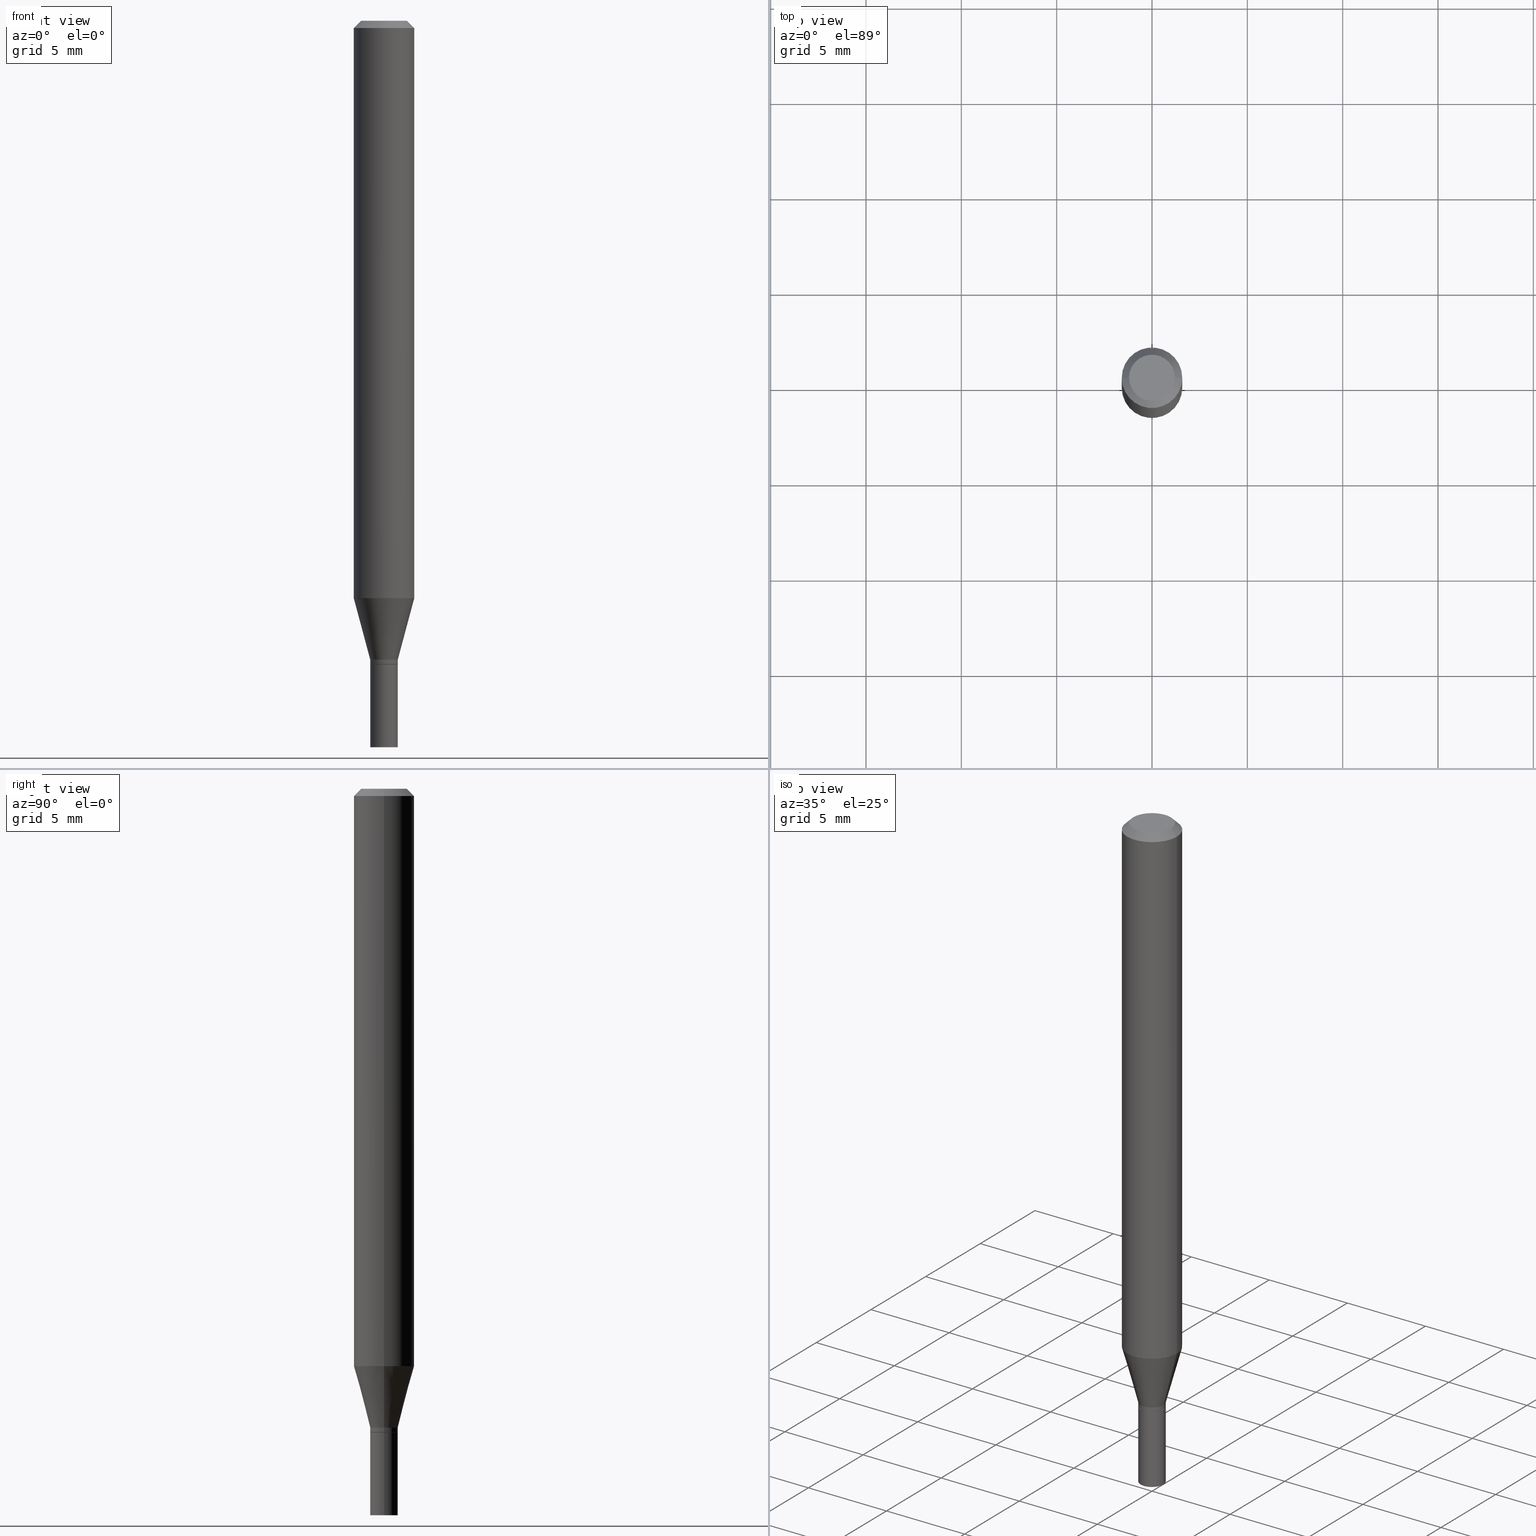
[diagram: canonical four-view strip — front | top / right | iso, engineering-drawing reading convention]
A machine part, canonical four-view strip (front | top / right | iso — engineering-drawing reading convention). The complete STEP part file that produces these views, byte-faithful:
ISO-10303-21;
HEADER;
FILE_DESCRIPTION (( 'STEP AP203' ),
    '1' );
FILE_NAME ('02486.STEP',
    '2024-03-18T20:53:44',
    ( '' ),
    ( '' ),
    'SwSTEP 2.0',
    'SolidWorks 2023',
    '' );
FILE_SCHEMA (( 'CONFIG_CONTROL_DESIGN' ));
ENDSEC;

DATA;
#1 = CYLINDRICAL_SURFACE ( 'NONE', #241, 0.06250000000000000000 ) ;
#2 = DIRECTION ( 'NONE',  ( -2.445468806185136877E-29, 3.491481338843145188E-15, 1.000000000000000000 ) ) ;
#3 = CARTESIAN_POINT ( 'NONE',  ( 3.250028043420046945E-29, -4.640178699322541079E-15, -1.329000000000000181 ) ) ;
#4 = ORIENTED_EDGE ( 'NONE', *, *, #466, .T. ) ;
#5 = MANIFOLD_SOLID_BREP ( 'Body-Move/Copy2[2]', #310 ) ;
#6 = DIRECTION ( 'NONE',  ( -2.445468806185136597E-29, 3.491481338843145583E-15, 1.000000000000000000 ) ) ;
#7 = ORIENTED_EDGE ( 'NONE', *, *, #179, .T. ) ;
#8 = VECTOR ( 'NONE', #141, 39.37007874015748143 ) ;
#9 = CC_DESIGN_SECURITY_CLASSIFICATION ( #42, ( #234 ) ) ;
#10 = CC_DESIGN_DATE_AND_TIME_ASSIGNMENT ( #456, #304, ( #42 ) ) ;
#11 = DIRECTION ( 'NONE',  ( 1.000000000000000000, -6.982962677686270655E-15, 0.000000000000000000 ) ) ;
#12 = FACE_OUTER_BOUND ( 'NONE', #301, .T. ) ;
#13 = DIRECTION ( 'NONE',  ( 1.000000000000000000, -6.982962677686266711E-15, 4.876176775795936353E-29 ) ) ;
#14 = ORIENTED_EDGE ( 'NONE', *, *, #145, .T. ) ;
#15 = ADVANCED_FACE ( 'NONE', ( #267 ), #38, .T. ) ;
#16 = DIRECTION ( 'NONE',  ( 1.000000000000000000, -6.982962677686264344E-15, 0.000000000000000000 ) ) ;
#17 = CIRCLE ( 'NONE', #275, 0.06250000000000000000 ) ;
#18 = VECTOR ( 'NONE', #257, 39.37007874015748143 ) ;
#19 = CARTESIAN_POINT ( 'NONE',  ( 3.668203209277704895E-29, -5.237222008264718177E-15, -1.500000000000000222 ) ) ;
#20 = ORIENTED_EDGE ( 'NONE', *, *, #131, .T. ) ;
#21 = DIRECTION ( 'NONE',  ( -2.445468806185136597E-29, 3.491481338843145583E-15, 1.000000000000000000 ) ) ;
#22 = APPROVAL_ROLE ( '' ) ;
#23 = DIRECTION ( 'NONE',  ( 1.000000000000000000, 0.000000000000000000, 0.000000000000000000 ) ) ;
#24 = CARTESIAN_POINT ( 'NONE',  ( 0.06250000000000000000, -4.364351673553916694E-16, 3.047610484872459871E-30 ) ) ;
#25 = ORIENTED_EDGE ( 'NONE', *, *, #321, .T. ) ;
#26 = CIRCLE ( 'NONE', #284, 0.02850000000000000103 ) ;
#27 = EDGE_CURVE ( 'NONE', #204, #231, #432, .T. ) ;
#28 = DATE_TIME_ROLE ( 'creation_date' ) ;
#29 = LINE ( 'NONE', #283, #225 ) ;
#30 = DIRECTION ( 'NONE',  ( -0.7071067811865656694, 7.493145998870420424E-15, 0.7071067811865294761 ) ) ;
#31 = CALENDAR_DATE ( 2024, 18, 3 ) ;
#32 = ORIENTED_EDGE ( 'NONE', *, *, #122, .T. ) ;
#33 = DATE_AND_TIME ( #422, #227 ) ;
#34 = VERTEX_POINT ( 'NONE', #240 ) ;
#35 = EDGE_LOOP ( 'NONE', ( #429, #118, #155, #195 ) ) ;
#36 = EDGE_CURVE ( 'NONE', #287, #458, #17, .T. ) ;
#37 = APPROVAL_DATE_TIME ( #236, #381 ) ;
#38 = CONICAL_SURFACE ( 'NONE', #147, 0.02849999999999992817, 0.2617993877991498519 ) ;
#39 = LINE ( 'NONE', #238, #209 ) ;
#40 = DIRECTION ( 'NONE',  ( 1.000000000000000000, -6.982962677686264344E-15, 0.000000000000000000 ) ) ;
#41 = AXIS2_PLACEMENT_3D ( 'NONE', #149, #6, #308 ) ;
#42 = SECURITY_CLASSIFICATION ( '', '', #229 ) ;
#43 = DIRECTION ( 'NONE',  ( -1.000000000000000000, 6.982962677686265922E-15, -4.876176775795935793E-29 ) ) ;
#44 = ADVANCED_FACE ( 'NONE', ( #217 ), #309, .T. ) ;
#45 = EDGE_CURVE ( 'NONE', #231, #287, #211, .T. ) ;
#46 = EDGE_CURVE ( 'NONE', #34, #62, #39, .T. ) ;
#47 = AXIS2_PLACEMENT_3D ( 'NONE', #395, #48, #54 ) ;
#48 = DIRECTION ( 'NONE',  ( 2.445468806185136597E-29, -3.491481338843145583E-15, -1.000000000000000000 ) ) ;
#49 = PERSON_AND_ORGANIZATION ( #450, #193 ) ;
#50 = ORIENTED_EDGE ( 'NONE', *, *, #321, .F. ) ;
#51 = DIRECTION ( 'NONE',  ( -2.445468806185136597E-29, 3.491481338843145583E-15, 1.000000000000000000 ) ) ;
#52 = DIRECTION ( 'NONE',  ( 1.000000000000000000, -6.982962677686264344E-15, 0.000000000000000000 ) ) ;
#53 = EDGE_CURVE ( 'NONE', #160, #287, #107, .T. ) ;
#54 = DIRECTION ( 'NONE',  ( -1.000000000000000000, 6.982962677686266711E-15, 0.000000000000000000 ) ) ;
#55 = LINE ( 'NONE', #59, #18 ) ;
#56 = FACE_OUTER_BOUND ( 'NONE', #197, .T. ) ;
#57 = VECTOR ( 'NONE', #2, 39.37007874015748143 ) ;
#58 = FACE_OUTER_BOUND ( 'NONE', #100, .T. ) ;
#59 = CARTESIAN_POINT ( 'NONE',  ( 0.02799999999999999711, -4.835701654297756579E-15, -1.329000000000000181 ) ) ;
#60 = PERSON_AND_ORGANIZATION ( #450, #193 ) ;
#61 = VECTOR ( 'NONE', #196, 39.37007874015748143 ) ;
#62 = VERTEX_POINT ( 'NONE', #245 ) ;
#63 = CC_DESIGN_PERSON_AND_ORGANIZATION_ASSIGNMENT ( #393, #356, ( #99 ) ) ;
#64 = ORIENTED_EDGE ( 'NONE', *, *, #461, .T. ) ;
#65 = CALENDAR_DATE ( 2024, 18, 3 ) ;
#66 = CARTESIAN_POINT ( 'NONE',  ( 3.225573355358195400E-29, -4.605263885934108641E-15, -1.318999999999999950 ) ) ;
#67 = PERSON_AND_ORGANIZATION ( #450, #193 ) ;
#68 = CIRCLE ( 'NONE', #142, 0.06250000000000000000 ) ;
#69 = DIRECTION ( 'NONE',  ( -2.445468806185136597E-29, 3.491481338843145583E-15, 1.000000000000000000 ) ) ;
#70 = CARTESIAN_POINT ( 'NONE',  ( 0.000000000000000000, 0.000000000000000000, 0.000000000000000000 ) ) ;
#71 = CARTESIAN_POINT ( 'NONE',  ( 3.225573355358195400E-29, -4.605263885934108641E-15, -1.318999999999999950 ) ) ;
#72 = AXIS2_PLACEMENT_3D ( 'NONE', #377, #336, #168 ) ;
#73 = PLANE ( 'NONE',  #154 ) ;
#74 = ADVANCED_FACE ( 'NONE', ( #385 ), #213, .F. ) ;
#75 = CC_DESIGN_DATE_AND_TIME_ASSIGNMENT ( #210, #28, ( #192 ) ) ;
#76 = DIRECTION ( 'NONE',  ( 1.000000000000000000, -6.982962677686264344E-15, 0.000000000000000000 ) ) ;
#77 = CIRCLE ( 'NONE', #124, 0.02849999999999992470 ) ;
#78 = APPROVAL_PERSON_ORGANIZATION ( #263, #381, #22 ) ;
#79 = APPLICATION_CONTEXT ( 'configuration controlled 3d designs of mechanical parts and assemblies' ) ;
#80 = CYLINDRICAL_SURFACE ( 'NONE', #182, 0.06250000000000000000 ) ;
#81 = EDGE_CURVE ( 'NONE', #231, #374, #68, .T. ) ;
#82 = APPROVAL_STATUS ( 'not_yet_approved' ) ;
#83 = DIRECTION ( 'NONE',  ( 1.000000000000000000, -6.982962677686265133E-15, 0.000000000000000000 ) ) ;
#84 = ORIENTED_EDGE ( 'NONE', *, *, #96, .T. ) ;
#85 = FACE_OUTER_BOUND ( 'NONE', #35, .T. ) ;
#86 = CIRCLE ( 'NONE', #126, 0.02849999999999992817 ) ;
#87 = AXIS2_PLACEMENT_3D ( 'NONE', #162, #365, #13 ) ;
#88 = ORIENTED_EDGE ( 'NONE', *, *, #184, .T. ) ;
#89 = ADVANCED_FACE ( 'NONE', ( #106 ), #95, .T. ) ;
#90 = ADVANCED_BREP_SHAPE_REPRESENTATION ( '02486', ( #157, #5, #177 ), #312 ) ;
#91 = ORIENTED_EDGE ( 'NONE', *, *, #169, .F. ) ;
#92 = PERSON_AND_ORGANIZATION_ROLE ( 'design_supplier' ) ;
#93 = PERSON_AND_ORGANIZATION ( #450, #193 ) ;
#94 = PERSON_AND_ORGANIZATION_ROLE ( 'classification_officer' ) ;
#95 = CONICAL_SURFACE ( 'NONE', #258, 0.02849999999999992817, 0.2617993877991498519 ) ;
#96 = EDGE_CURVE ( 'NONE', #226, #295, #347, .T. ) ;
#97 = APPROVAL_ROLE ( '' ) ;
#98 = COORDINATED_UNIVERSAL_TIME_OFFSET ( 5, 0, .BEHIND. ) ;
#99 = PRODUCT ( '02486', '02486', '', ( #128 ) ) ;
#100 = EDGE_LOOP ( 'NONE', ( #424, #163, #135, #91 ) ) ;
#101 = VERTEX_POINT ( 'NONE', #266 ) ;
#102 = VECTOR ( 'NONE', #152, 39.37007874015748143 ) ;
#103 = COORDINATED_UNIVERSAL_TIME_OFFSET ( 5, 0, .BEHIND. ) ;
#104 = EDGE_LOOP ( 'NONE', ( #343, #426, #464, #416 ) ) ;
#105 = FACE_OUTER_BOUND ( 'NONE', #175, .T. ) ;
#106 = FACE_OUTER_BOUND ( 'NONE', #104, .T. ) ;
#107 = LINE ( 'NONE', #463, #8 ) ;
#108 = CARTESIAN_POINT ( 'NONE',  ( -0.02850000000000000103, -4.736195674102000895E-15, -1.500000000000000222 ) ) ;
#109 = ADVANCED_FACE ( 'NONE', ( #420 ), #73, .F. ) ;
#110 = CIRCLE ( 'NONE', #41, 0.02850000000000000103 ) ;
#111 = LOCAL_TIME ( 16, 53, 44.00000000000000000, #98 ) ;
#112 = CARTESIAN_POINT ( 'NONE',  ( 0.02849999999999992817, -4.804278322248167148E-15, -1.318999999999999950 ) ) ;
#113 = DIRECTION ( 'NONE',  ( 1.000000000000000000, -6.982962677686280910E-15, 0.000000000000000000 ) ) ;
#114 = CONICAL_SURFACE ( 'NONE', #47, 0.06250000000000000000, 0.7853981633974567167 ) ;
#115 = CC_DESIGN_APPROVAL ( #442, ( #192 ) ) ;
#116 = FACE_OUTER_BOUND ( 'NONE', #186, .T. ) ;
#117 = CARTESIAN_POINT ( 'NONE',  ( 6.093689898318465335E-45, -8.700174179635472181E-31, -2.491828921680032634E-16 ) ) ;
#118 = ORIENTED_EDGE ( 'NONE', *, *, #131, .F. ) ;
#119 = DIRECTION ( 'NONE',  ( -2.445468806185136597E-29, 3.491481338843145583E-15, 1.000000000000000000 ) ) ;
#120 = DIRECTION ( 'NONE',  ( -2.445468806185136597E-29, 3.491481338843145583E-15, 1.000000000000000000 ) ) ;
#121 = CARTESIAN_POINT ( 'NONE',  ( 3.250028043420046945E-29, -4.640178699322541079E-15, -1.329000000000000181 ) ) ;
#122 = EDGE_CURVE ( 'NONE', #62, #295, #110, .T. ) ;
#123 = ORIENTED_EDGE ( 'NONE', *, *, #81, .T. ) ;
#124 = AXIS2_PLACEMENT_3D ( 'NONE', #346, #174, #181 ) ;
#125 = CYLINDRICAL_SURFACE ( 'NONE', #249, 0.02850000000000000103 ) ;
#126 = AXIS2_PLACEMENT_3D ( 'NONE', #235, #390, #212 ) ;
#127 = CARTESIAN_POINT ( 'NONE',  ( 0.02799999999999999711, -4.835701654297756579E-15, -1.329000000000000181 ) ) ;
#128 = MECHANICAL_CONTEXT ( 'NONE', #260, 'mechanical' ) ;
#129 = ORIENTED_EDGE ( 'NONE', *, *, #281, .T. ) ;
#130 = FACE_OUTER_BOUND ( 'NONE', #272, .T. ) ;
#131 = EDGE_CURVE ( 'NONE', #160, #421, #190, .T. ) ;
#132 = ORIENTED_EDGE ( 'NONE', *, *, #293, .T. ) ;
#133 = CIRCLE ( 'NONE', #294, 0.06250000000000000000 ) ;
#134 = LOCAL_TIME ( 16, 53, 44.00000000000000000, #232 ) ;
#135 = ORIENTED_EDGE ( 'NONE', *, *, #315, .F. ) ;
#136 = ORIENTED_EDGE ( 'NONE', *, *, #218, .T. ) ;
#137 = CARTESIAN_POINT ( 'NONE',  ( -0.02849999999999992817, -4.402759206242480303E-15, -1.318999999999999950 ) ) ;
#138 = EDGE_LOOP ( 'NONE', ( #299, #136, #302, #307 ) ) ;
#139 = DATE_AND_TIME ( #243, #427 ) ;
#140 = ADVANCED_FACE ( 'NONE', ( #462 ), #1, .T. ) ;
#141 = DIRECTION ( 'NONE',  ( -0.7071067811865534569, 2.468850131082318986E-15, -0.7071067811865415775 ) ) ;
#142 = AXIS2_PLACEMENT_3D ( 'NONE', #143, #273, #430 ) ;
#143 = CARTESIAN_POINT ( 'NONE',  ( 2.915268485035931806E-29, -4.162230770425907235E-15, -1.192110272542658223 ) ) ;
#144 = DIRECTION ( 'NONE',  ( -2.445468806185136597E-29, 3.491481338843145583E-15, 1.000000000000000000 ) ) ;
#145 = EDGE_CURVE ( 'NONE', #414, #101, #369, .T. ) ;
#146 = PLANE ( 'NONE',  #433 ) ;
#147 = AXIS2_PLACEMENT_3D ( 'NONE', #66, #144, #244 ) ;
#148 = ORIENTED_EDGE ( 'NONE', *, *, #371, .T. ) ;
#149 = CARTESIAN_POINT ( 'NONE',  ( 3.250028043420046945E-29, -4.640178699322541079E-15, -1.329000000000000181 ) ) ;
#150 = FACE_OUTER_BOUND ( 'NONE', #326, .T. ) ;
#151 = ADVANCED_FACE ( 'NONE', ( #56 ), #440, .T. ) ;
#152 = DIRECTION ( 'NONE',  ( 0.7071067811865534569, -7.319954787623276556E-15, -0.7071067811865415775 ) ) ;
#153 =( LENGTH_UNIT ( ) NAMED_UNIT ( * ) SI_UNIT ( $, .METRE. ) );
#154 = AXIS2_PLACEMENT_3D ( 'NONE', #316, #435, #351 ) ;
#155 = ORIENTED_EDGE ( 'NONE', *, *, #53, .T. ) ;
#156 = DIRECTION ( 'NONE',  ( 1.000000000000000000, -6.982962677686265922E-15, 4.876176775795935232E-29 ) ) ;
#157 = MANIFOLD_SOLID_BREP ( 'Body-Move/Copy2[1]', #388 ) ;
#158 = FACE_OUTER_BOUND ( 'NONE', #406, .T. ) ;
#159 = CC_DESIGN_PERSON_AND_ORGANIZATION_ASSIGNMENT ( #67, #239, ( #192 ) ) ;
#160 = VERTEX_POINT ( 'NONE', #446 ) ;
#161 = CARTESIAN_POINT ( 'NONE',  ( 0.000000000000000000, 0.000000000000000000, 0.000000000000000000 ) ) ;
#162 = CARTESIAN_POINT ( 'NONE',  ( 0.000000000000000000, 0.000000000000000000, 0.000000000000000000 ) ) ;
#163 = ORIENTED_EDGE ( 'NONE', *, *, #45, .T. ) ;
#164 = AXIS2_PLACEMENT_3D ( 'NONE', #256, #447, #83 ) ;
#165 = CONICAL_SURFACE ( 'NONE', #251, 0.02799999999999999711, 0.7853981633974739252 ) ;
#166 = APPROVAL_STATUS ( 'not_yet_approved' ) ;
#167 = ORIENTED_EDGE ( 'NONE', *, *, #46, .F. ) ;
#168 = DIRECTION ( 'NONE',  ( 1.000000000000000000, -6.982962677686265922E-15, 0.000000000000000000 ) ) ;
#169 = EDGE_CURVE ( 'NONE', #374, #458, #198, .T. ) ;
#170 = EDGE_LOOP ( 'NONE', ( #32, #148 ) ) ;
#171 = SHAPE_DEFINITION_REPRESENTATION ( #413, #90 ) ;
#172 = AXIS2_PLACEMENT_3D ( 'NONE', #3, #344, #40 ) ;
#173 = CIRCLE ( 'NONE', #409, 0.02850000000000000103 ) ;
#174 = DIRECTION ( 'NONE',  ( -2.445468806185136597E-29, 3.491481338843145583E-15, 1.000000000000000000 ) ) ;
#175 = EDGE_LOOP ( 'NONE', ( #402, #370 ) ) ;
#176 = AXIS2_PLACEMENT_3D ( 'NONE', #228, #437, #290 ) ;
#177 = AXIS2_PLACEMENT_3D ( 'NONE', #230, #330, #23 ) ;
#178 = DIRECTION ( 'NONE',  ( -2.445468806185136597E-29, 3.491481338843145583E-15, 1.000000000000000000 ) ) ;
#179 = EDGE_CURVE ( 'NONE', #203, #376, #29, .T. ) ;
#180 = DIRECTION ( 'NONE',  ( -2.445468806185136597E-29, 3.491481338843145583E-15, 1.000000000000000000 ) ) ;
#181 = DIRECTION ( 'NONE',  ( 1.000000000000000000, -6.982962677686265922E-15, 0.000000000000000000 ) ) ;
#182 = AXIS2_PLACEMENT_3D ( 'NONE', #324, #51, #248 ) ;
#183 = CARTESIAN_POINT ( 'NONE',  ( 3.668203209277705088E-31, -5.237222008264718399E-17, -0.01499999999999999944 ) ) ;
#184 = EDGE_CURVE ( 'NONE', #421, #160, #333, .T. ) ;
#185 = CARTESIAN_POINT ( 'NONE',  ( 0.06250000000000000000, -4.888073874380388472E-16, -0.01499999999999999944 ) ) ;
#186 = EDGE_LOOP ( 'NONE', ( #20, #88 ) ) ;
#187 = CARTESIAN_POINT ( 'NONE',  ( 3.250028043420046945E-29, -4.640178699322541079E-15, -1.329000000000000181 ) ) ;
#188 = DIRECTION ( 'NONE',  ( 1.000000000000000000, -6.982962677686266711E-15, 4.876176775795936353E-29 ) ) ;
#189 = DIRECTION ( 'NONE',  ( 1.000000000000000000, -6.982962677686267499E-15, 4.852736867747366768E-29 ) ) ;
#190 = CIRCLE ( 'NONE', #311, 0.04749999999999999362 ) ;
#191 = VERTEX_POINT ( 'NONE', #127 ) ;
#192 = PRODUCT_DEFINITION ( 'UNKNOWN', '', #234, #224 ) ;
#193 = ORGANIZATION ( 'UNSPECIFIED', 'UNSPECIFIED', '' ) ;
#194 = LINE ( 'NONE', #353, #61 ) ;
#195 = ORIENTED_EDGE ( 'NONE', *, *, #36, .T. ) ;
#196 = DIRECTION ( 'NONE',  ( -2.445468806185136877E-29, 3.491481338843145188E-15, 1.000000000000000000 ) ) ;
#197 = EDGE_LOOP ( 'NONE', ( #242, #339, #382, #387 ) ) ;
#198 = LINE ( 'NONE', #24, #318 ) ;
#199 = EDGE_LOOP ( 'NONE', ( #278, #457, #64, #261 ) ) ;
#200 = AXIS2_PLACEMENT_3D ( 'NONE', #117, #401, #189 ) ;
#201 = COORDINATED_UNIVERSAL_TIME_OFFSET ( 5, 0, .BEHIND. ) ;
#202 = ORIENTED_EDGE ( 'NONE', *, *, #46, .T. ) ;
#203 = VERTEX_POINT ( 'NONE', #411 ) ;
#204 = VERTEX_POINT ( 'NONE', #452 ) ;
#205 = APPROVAL_DATE_TIME ( #33, #442 ) ;
#206 = EDGE_LOOP ( 'NONE', ( #418, #129, #305, #454 ) ) ;
#207 = CARTESIAN_POINT ( 'NONE',  ( 3.668203209277705088E-31, -5.237222008264718399E-17, -0.01499999999999999944 ) ) ;
#208 = PRODUCT_RELATED_PRODUCT_CATEGORY ( 'detail', '', ( #99 ) ) ;
#209 = VECTOR ( 'NONE', #306, 39.37007874015748143 ) ;
#210 = DATE_AND_TIME ( #65, #134 ) ;
#211 = LINE ( 'NONE', #349, #57 ) ;
#212 = DIRECTION ( 'NONE',  ( 1.000000000000000000, -6.982962677686265133E-15, 0.000000000000000000 ) ) ;
#213 = PLANE ( 'NONE',  #380 ) ;
#214 = EDGE_CURVE ( 'NONE', #101, #203, #389, .T. ) ;
#215 = DIRECTION ( 'NONE',  ( 1.000000000000000000, -6.982962677686265133E-15, 0.000000000000000000 ) ) ;
#216 = EDGE_CURVE ( 'NONE', #204, #376, #86, .T. ) ;
#217 = FACE_OUTER_BOUND ( 'NONE', #206, .T. ) ;
#218 = EDGE_CURVE ( 'NONE', #414, #191, #303, .T. ) ;
#219 = VECTOR ( 'NONE', #30, 39.37007874015748143 ) ;
#220 = APPLICATION_PROTOCOL_DEFINITION ( 'international standard', 'config_control_design', 1994, #79 ) ;
#221 = DIRECTION ( 'NONE',  ( 1.000000000000000000, -6.982962677686280910E-15, 0.000000000000000000 ) ) ;
#222 = DIRECTION ( 'NONE',  ( -2.445468806185136597E-29, 3.491481338843145583E-15, 1.000000000000000000 ) ) ;
#223 = EDGE_CURVE ( 'NONE', #203, #101, #77, .T. ) ;
#224 = DESIGN_CONTEXT ( 'detailed design', #79, 'design' ) ;
#225 = VECTOR ( 'NONE', #408, 39.37007874015748143 ) ;
#226 = VERTEX_POINT ( 'NONE', #108 ) ;
#227 = LOCAL_TIME ( 16, 53, 44.00000000000000000, #375 ) ;
#228 = CARTESIAN_POINT ( 'NONE',  ( 3.316907271900976096E-16, 0.04749999999999999362, -2.904368096790510281E-16 ) ) ;
#229 = SECURITY_CLASSIFICATION_LEVEL ( 'unclassified' ) ;
#230 = CARTESIAN_POINT ( 'NONE',  ( 0.000000000000000000, 0.000000000000000000, 0.000000000000000000 ) ) ;
#231 = VERTEX_POINT ( 'NONE', #428 ) ;
#232 = COORDINATED_UNIVERSAL_TIME_OFFSET ( 5, 0, .BEHIND. ) ;
#233 = CARTESIAN_POINT ( 'NONE',  ( -0.02799999999999999711, -4.438577506135602438E-15, -1.329000000000000181 ) ) ;
#234 = PRODUCT_DEFINITION_FORMATION_WITH_SPECIFIED_SOURCE ( 'ANY', '', #99, .NOT_KNOWN. ) ;
#235 = CARTESIAN_POINT ( 'NONE',  ( 3.225573355358195400E-29, -4.605263885934108641E-15, -1.318999999999999950 ) ) ;
#236 = DATE_AND_TIME ( #410, #111 ) ;
#237 = ADVANCED_FACE ( 'NONE', ( #105 ), #146, .F. ) ;
#238 = CARTESIAN_POINT ( 'NONE',  ( 0.02850000000000000103, -1.990144363140586052E-16, 1.389710381101841869E-30 ) ) ;
#239 = PERSON_AND_ORGANIZATION_ROLE ( 'creator' ) ;
#240 = CARTESIAN_POINT ( 'NONE',  ( 0.02850000000000000103, -5.436236444578777472E-15, -1.500000000000000222 ) ) ;
#241 = AXIS2_PLACEMENT_3D ( 'NONE', #342, #383, #270 ) ;
#242 = ORIENTED_EDGE ( 'NONE', *, *, #184, .F. ) ;
#243 = CALENDAR_DATE ( 2024, 18, 3 ) ;
#244 = DIRECTION ( 'NONE',  ( 1.000000000000000000, -6.982962677686265133E-15, 0.000000000000000000 ) ) ;
#245 = CARTESIAN_POINT ( 'NONE',  ( 0.02850000000000000103, -4.839193135636600375E-15, -1.329000000000000181 ) ) ;
#246 = AXIS2_PLACEMENT_3D ( 'NONE', #412, #361, #366 ) ;
#247 = APPROVAL_PERSON_ORGANIZATION ( #49, #442, #97 ) ;
#248 = DIRECTION ( 'NONE',  ( 1.000000000000000000, -6.982962677686266711E-15, 4.876176775795935793E-29 ) ) ;
#249 = AXIS2_PLACEMENT_3D ( 'NONE', #161, #325, #188 ) ;
#250 =( CONVERSION_BASED_UNIT ( 'INCH', #285 ) LENGTH_UNIT ( ) NAMED_UNIT ( #398 ) );
#251 = AXIS2_PLACEMENT_3D ( 'NONE', #359, #120, #52 ) ;
#252 = PLANE ( 'NONE',  #176 ) ;
#253 = ADVANCED_FACE ( 'NONE', ( #12 ), #125, .T. ) ;
#254 = CYLINDRICAL_SURFACE ( 'NONE', #87, 0.02850000000000000103 ) ;
#255 = CARTESIAN_POINT ( 'NONE',  ( 0.000000000000000000, 0.000000000000000000, 0.000000000000000000 ) ) ;
#256 = CARTESIAN_POINT ( 'NONE',  ( 3.225573355358195400E-29, -4.605263885934108641E-15, -1.318999999999999950 ) ) ;
#257 = DIRECTION ( 'NONE',  ( 0.7071067811865656694, -2.468850131082446387E-15, 0.7071067811865294761 ) ) ;
#258 = AXIS2_PLACEMENT_3D ( 'NONE', #71, #180, #215 ) ;
#259 = DIRECTION ( 'NONE',  ( -2.445468806185136597E-29, 3.491481338843145583E-15, 1.000000000000000000 ) ) ;
#260 = APPLICATION_CONTEXT ( 'configuration controlled 3d designs of mechanical parts and assemblies' ) ;
#261 = ORIENTED_EDGE ( 'NONE', *, *, #81, .F. ) ;
#262 = VECTOR ( 'NONE', #314, 39.37007874015748143 ) ;
#263 = PERSON_AND_ORGANIZATION ( #450, #193 ) ;
#264 = ORIENTED_EDGE ( 'NONE', *, *, #218, .F. ) ;
#265 = ADVANCED_FACE ( 'NONE', ( #58 ), #80, .T. ) ;
#266 = CARTESIAN_POINT ( 'NONE',  ( -0.02849999999999992470, -4.435928278961492815E-15, -1.328500000000000236 ) ) ;
#267 = FACE_OUTER_BOUND ( 'NONE', #199, .T. ) ;
#268 = ORIENTED_EDGE ( 'NONE', *, *, #169, .T. ) ;
#269 = APPROVAL_ROLE ( '' ) ;
#270 = DIRECTION ( 'NONE',  ( 1.000000000000000000, -6.982962677686266711E-15, 4.876176775795935793E-29 ) ) ;
#271 = AXIS2_PLACEMENT_3D ( 'NONE', #255, #259, #156 ) ;
#272 = EDGE_LOOP ( 'NONE', ( #25, #14, #455, #460 ) ) ;
#273 = DIRECTION ( 'NONE',  ( -2.445468806185136597E-29, 3.491481338843145583E-15, 1.000000000000000000 ) ) ;
#274 = DIRECTION ( 'NONE',  ( 1.000000000000000000, -6.982962677686265922E-15, 4.876176775795935232E-29 ) ) ;
#275 = AXIS2_PLACEMENT_3D ( 'NONE', #207, #178, #379 ) ;
#276 = CC_DESIGN_PERSON_AND_ORGANIZATION_ASSIGNMENT ( #60, #94, ( #42 ) ) ;
#277 = LOCAL_TIME ( 16, 53, 44.00000000000000000, #201 ) ;
#278 = ORIENTED_EDGE ( 'NONE', *, *, #27, .F. ) ;
#279 = CARTESIAN_POINT ( 'NONE',  ( -0.06250000000000000000, -1.663212285404214738E-15, -0.01499999999999999944 ) ) ;
#280 = CARTESIAN_POINT ( 'NONE',  ( 3.668203209277704895E-29, -5.237222008264718177E-15, -1.500000000000000222 ) ) ;
#281 = EDGE_CURVE ( 'NONE', #101, #204, #194, .T. ) ;
#282 = CYLINDRICAL_SURFACE ( 'NONE', #271, 0.02849999999999992470 ) ;
#283 = CARTESIAN_POINT ( 'NONE',  ( 0.02849999999999992470, -1.990144363140580629E-16, 1.389710381101837840E-30 ) ) ;
#284 = AXIS2_PLACEMENT_3D ( 'NONE', #19, #358, #221 ) ;
#285 = LENGTH_MEASURE_WITH_UNIT ( LENGTH_MEASURE( 0.02539999999999999897 ), #153 );
#286 = CIRCLE ( 'NONE', #391, 0.06250000000000000000 ) ;
#287 = VERTEX_POINT ( 'NONE', #279 ) ;
#288 = DIRECTION ( 'NONE',  ( 1.000000000000000000, -6.982962677686280910E-15, 0.000000000000000000 ) ) ;
#289 = CARTESIAN_POINT ( 'NONE',  ( 0.02849999999999992817, -4.804278322248167148E-15, -1.318999999999999950 ) ) ;
#290 = DIRECTION ( 'NONE',  ( -1.000000000000000000, 6.982962677686265922E-15, -4.876176775795935793E-29 ) ) ;
#291 = LINE ( 'NONE', #407, #102 ) ;
#292 = APPLICATION_PROTOCOL_DEFINITION ( 'international standard', 'config_control_design', 1994, #260 ) ;
#293 = EDGE_CURVE ( 'NONE', #34, #226, #26, .T. ) ;
#294 = AXIS2_PLACEMENT_3D ( 'NONE', #183, #21, #439 ) ;
#295 = VERTEX_POINT ( 'NONE', #327 ) ;
#296 = EDGE_LOOP ( 'NONE', ( #50, #264 ) ) ;
#297 = CARTESIAN_POINT ( 'NONE',  ( 0.04749999999999999362, -4.035134999187582567E-16, -2.491828921680006996E-16 ) ) ;
#298 = PERSON_AND_ORGANIZATION_ROLE ( 'creator' ) ;
#299 = ORIENTED_EDGE ( 'NONE', *, *, #145, .F. ) ;
#300 = ADVANCED_FACE ( 'NONE', ( #85 ), #114, .T. ) ;
#301 = EDGE_LOOP ( 'NONE', ( #132, #84, #368, #167 ) ) ;
#302 = ORIENTED_EDGE ( 'NONE', *, *, #459, .T. ) ;
#303 = CIRCLE ( 'NONE', #172, 0.02799999999999999711 ) ;
#304 = DATE_TIME_ROLE ( 'classification_date' ) ;
#305 = ORIENTED_EDGE ( 'NONE', *, *, #328, .F. ) ;
#306 = DIRECTION ( 'NONE',  ( -2.445468806185136877E-29, 3.491481338843145188E-15, 1.000000000000000000 ) ) ;
#307 = ORIENTED_EDGE ( 'NONE', *, *, #214, .F. ) ;
#308 = DIRECTION ( 'NONE',  ( 1.000000000000000000, -6.982962677686280910E-15, 0.000000000000000000 ) ) ;
#309 = CYLINDRICAL_SURFACE ( 'NONE', #396, 0.02849999999999992470 ) ;
#310 = CLOSED_SHELL ( 'NONE', ( #44, #431, #151, #265, #89, #15, #140, #300, #350, #109, #386, #337 ) ) ;
#311 = AXIS2_PLACEMENT_3D ( 'NONE', #384, #335, #378 ) ;
#312 =( GEOMETRIC_REPRESENTATION_CONTEXT ( 3 ) GLOBAL_UNCERTAINTY_ASSIGNED_CONTEXT ( ( #443 ) ) GLOBAL_UNIT_ASSIGNED_CONTEXT ( ( #250, #404, #399 ) ) REPRESENTATION_CONTEXT ( 'NONE', 'WORKASPACE' ) );
#313 = CARTESIAN_POINT ( 'NONE',  ( -0.02850000000000000103, 2.025046796916285603E-16, -1.401896500722648086E-30 ) ) ;
#314 = DIRECTION ( 'NONE',  ( -2.445468806185136877E-29, 3.491481338843145188E-15, 1.000000000000000000 ) ) ;
#315 = EDGE_CURVE ( 'NONE', #458, #287, #133, .T. ) ;
#316 = CARTESIAN_POINT ( 'NONE',  ( 3.250028043420046945E-29, -4.640178699322541079E-15, -1.329000000000000181 ) ) ;
#317 = ORIENTED_EDGE ( 'NONE', *, *, #214, .T. ) ;
#318 = VECTOR ( 'NONE', #332, 39.37007874015748143 ) ;
#319 = VECTOR ( 'NONE', #445, 39.37007874015748854 ) ;
#320 = CARTESIAN_POINT ( 'NONE',  ( 2.915268485035931806E-29, -4.162230770425907235E-15, -1.192110272542658223 ) ) ;
#321 = EDGE_CURVE ( 'NONE', #191, #414, #348, .T. ) ;
#322 = DIRECTION ( 'NONE',  ( -2.445468806185136597E-29, 3.491481338843145583E-15, 1.000000000000000000 ) ) ;
#323 = EDGE_CURVE ( 'NONE', #421, #458, #291, .T. ) ;
#324 = CARTESIAN_POINT ( 'NONE',  ( 0.000000000000000000, 0.000000000000000000, 0.000000000000000000 ) ) ;
#325 = DIRECTION ( 'NONE',  ( -2.445468806185136597E-29, 3.491481338843145583E-15, 1.000000000000000000 ) ) ;
#326 = EDGE_LOOP ( 'NONE', ( #352, #4, #202, #367 ) ) ;
#327 = CARTESIAN_POINT ( 'NONE',  ( -0.02850000000000000103, -4.736195674102000895E-15, -1.329000000000000181 ) ) ;
#328 = EDGE_CURVE ( 'NONE', #376, #204, #354, .T. ) ;
#329 = PERSON_AND_ORGANIZATION ( #450, #193 ) ;
#330 = DIRECTION ( 'NONE',  ( 0.000000000000000000, 0.000000000000000000, 1.000000000000000000 ) ) ;
#331 = CARTESIAN_POINT ( 'NONE',  ( -0.02799999999999999711, -4.441226733309713639E-15, -1.329000000000000181 ) ) ;
#332 = DIRECTION ( 'NONE',  ( -2.445468806185136877E-29, 3.491481338843145188E-15, 1.000000000000000000 ) ) ;
#333 = CIRCLE ( 'NONE', #200, 0.04749999999999999362 ) ;
#334 = CC_DESIGN_APPROVAL ( #453, ( #234 ) ) ;
#335 = DIRECTION ( 'NONE',  ( -2.445468806185136597E-29, 3.491481338843145583E-15, 1.000000000000000000 ) ) ;
#336 = DIRECTION ( 'NONE',  ( -2.445468806185136597E-29, 3.491481338843145583E-15, 1.000000000000000000 ) ) ;
#337 = ADVANCED_FACE ( 'NONE', ( #158 ), #282, .T. ) ;
#338 = ORIENTED_EDGE ( 'NONE', *, *, #281, .F. ) ;
#339 = ORIENTED_EDGE ( 'NONE', *, *, #323, .T. ) ;
#340 = ORIENTED_EDGE ( 'NONE', *, *, #45, .F. ) ;
#341 = VECTOR ( 'NONE', #423, 39.37007874015748854 ) ;
#342 = CARTESIAN_POINT ( 'NONE',  ( 0.000000000000000000, 0.000000000000000000, 0.000000000000000000 ) ) ;
#343 = ORIENTED_EDGE ( 'NONE', *, *, #328, .T. ) ;
#344 = DIRECTION ( 'NONE',  ( -2.445468806185136597E-29, 3.491481338843145583E-15, 1.000000000000000000 ) ) ;
#345 = CARTESIAN_POINT ( 'NONE',  ( 1.990144363140910964E-16, 0.02849999999999535891, -1.329000000000000181 ) ) ;
#346 = CARTESIAN_POINT ( 'NONE',  ( 3.248805309016954704E-29, -4.638432958653120365E-15, -1.328500000000000236 ) ) ;
#347 = LINE ( 'NONE', #313, #262 ) ;
#348 = CIRCLE ( 'NONE', #448, 0.02799999999999999711 ) ;
#349 = CARTESIAN_POINT ( 'NONE',  ( -0.06250000000000000000, 4.440892098500626162E-16, -3.074334431409316114E-30 ) ) ;
#350 = ADVANCED_FACE ( 'NONE', ( #116 ), #252, .F. ) ;
#351 = DIRECTION ( 'NONE',  ( 1.000000000000000000, -6.982962677686265922E-15, 4.876176775795935793E-29 ) ) ;
#352 = ORIENTED_EDGE ( 'NONE', *, *, #96, .F. ) ;
#353 = CARTESIAN_POINT ( 'NONE',  ( -0.02849999999999992470, 2.025046796916280179E-16, -1.401896500722644233E-30 ) ) ;
#354 = CIRCLE ( 'NONE', #164, 0.02849999999999992817 ) ;
#355 = APPROVAL_PERSON_ORGANIZATION ( #93, #453, #269 ) ;
#356 = PERSON_AND_ORGANIZATION_ROLE ( 'design_owner' ) ;
#357 = CARTESIAN_POINT ( 'NONE',  ( 3.576687321579069994E-29, -5.368277968210015545E-15, -1.500000000000000222 ) ) ;
#358 = DIRECTION ( 'NONE',  ( -2.445468806185136597E-29, 3.491481338843145583E-15, 1.000000000000000000 ) ) ;
#359 = CARTESIAN_POINT ( 'NONE',  ( 3.250028043420046945E-29, -4.640178699322541079E-15, -1.329000000000000181 ) ) ;
#360 = DIRECTION ( 'NONE',  ( -2.438088387897960049E-29, 3.491481338843145188E-15, 1.000000000000000000 ) ) ;
#361 = DIRECTION ( 'NONE',  ( 2.445468806185136597E-29, -3.491481338843145583E-15, -1.000000000000000000 ) ) ;
#362 = ORIENTED_EDGE ( 'NONE', *, *, #36, .F. ) ;
#363 = CC_DESIGN_PERSON_AND_ORGANIZATION_ASSIGNMENT ( #415, #92, ( #234 ) ) ;
#364 = CARTESIAN_POINT ( 'NONE',  ( 0.06250000000000000000, -4.598665937781298116E-15, -1.192110272542658223 ) ) ;
#365 = DIRECTION ( 'NONE',  ( -2.445468806185136597E-29, 3.491481338843145583E-15, 1.000000000000000000 ) ) ;
#366 = DIRECTION ( 'NONE',  ( -1.000000000000000000, 6.982962677686266711E-15, 0.000000000000000000 ) ) ;
#367 = ORIENTED_EDGE ( 'NONE', *, *, #371, .F. ) ;
#368 = ORIENTED_EDGE ( 'NONE', *, *, #122, .F. ) ;
#369 = LINE ( 'NONE', #331, #219 ) ;
#370 = ORIENTED_EDGE ( 'NONE', *, *, #466, .F. ) ;
#371 = EDGE_CURVE ( 'NONE', #295, #62, #372, .T. ) ;
#372 = CIRCLE ( 'NONE', #417, 0.02850000000000000103 ) ;
#373 = CONICAL_SURFACE ( 'NONE', #434, 0.02799999999999999711, 0.7853981633974739252 ) ;
#374 = VERTEX_POINT ( 'NONE', #364 ) ;
#375 = COORDINATED_UNIVERSAL_TIME_OFFSET ( 5, 0, .BEHIND. ) ;
#376 = VERTEX_POINT ( 'NONE', #112 ) ;
#377 = CARTESIAN_POINT ( 'NONE',  ( 3.248805309016954704E-29, -4.638432958653120365E-15, -1.328500000000000236 ) ) ;
#378 = DIRECTION ( 'NONE',  ( 1.000000000000000000, -6.982962677686267499E-15, 4.852736867747366768E-29 ) ) ;
#379 = DIRECTION ( 'NONE',  ( 1.000000000000000000, -6.982962677686266711E-15, 0.000000000000000000 ) ) ;
#380 = AXIS2_PLACEMENT_3D ( 'NONE', #345, #465, #43 ) ;
#381 = APPROVAL ( #419, 'UNSPECIFIED' ) ;
#382 = ORIENTED_EDGE ( 'NONE', *, *, #315, .T. ) ;
#383 = DIRECTION ( 'NONE',  ( -2.445468806185136597E-29, 3.491481338843145583E-15, 1.000000000000000000 ) ) ;
#384 = CARTESIAN_POINT ( 'NONE',  ( 6.093689898318465335E-45, -8.700174179635472181E-31, -2.491828921680032634E-16 ) ) ;
#385 = FACE_OUTER_BOUND ( 'NONE', #170, .T. ) ;
#386 = ADVANCED_FACE ( 'NONE', ( #400 ), #373, .T. ) ;
#387 = ORIENTED_EDGE ( 'NONE', *, *, #53, .F. ) ;
#388 = CLOSED_SHELL ( 'NONE', ( #253, #237, #436, #74 ) ) ;
#389 = CIRCLE ( 'NONE', #72, 0.02849999999999992470 ) ;
#390 = DIRECTION ( 'NONE',  ( -2.445468806185136597E-29, 3.491481338843145583E-15, 1.000000000000000000 ) ) ;
#391 = AXIS2_PLACEMENT_3D ( 'NONE', #320, #403, #11 ) ;
#392 = ORIENTED_EDGE ( 'NONE', *, *, #216, .F. ) ;
#393 = PERSON_AND_ORGANIZATION ( #450, #193 ) ;
#394 = CC_DESIGN_PERSON_AND_ORGANIZATION_ASSIGNMENT ( #329, #298, ( #234 ) ) ;
#395 = CARTESIAN_POINT ( 'NONE',  ( 3.668203209277705088E-31, -5.237222008264718399E-17, -0.01499999999999999944 ) ) ;
#396 = AXIS2_PLACEMENT_3D ( 'NONE', #70, #69, #274 ) ;
#397 = CC_DESIGN_APPROVAL ( #381, ( #42 ) ) ;
#398 = DIMENSIONAL_EXPONENTS ( 1.000000000000000000, 0.000000000000000000, 0.000000000000000000, 0.000000000000000000, 0.000000000000000000, 0.000000000000000000, 0.000000000000000000 ) ;
#399 =( NAMED_UNIT ( * ) SI_UNIT ( $, .STERADIAN. ) SOLID_ANGLE_UNIT ( ) );
#400 = FACE_OUTER_BOUND ( 'NONE', #138, .T. ) ;
#401 = DIRECTION ( 'NONE',  ( -2.445468806185136597E-29, 3.491481338843145583E-15, 1.000000000000000000 ) ) ;
#402 = ORIENTED_EDGE ( 'NONE', *, *, #293, .F. ) ;
#403 = DIRECTION ( 'NONE',  ( -2.445468806185136597E-29, 3.491481338843145583E-15, 1.000000000000000000 ) ) ;
#404 =( NAMED_UNIT ( * ) PLANE_ANGLE_UNIT ( ) SI_UNIT ( $, .RADIAN. ) );
#405 = EDGE_CURVE ( 'NONE', #374, #231, #286, .T. ) ;
#406 = EDGE_LOOP ( 'NONE', ( #338, #317, #7, #392 ) ) ;
#407 = CARTESIAN_POINT ( 'NONE',  ( 0.06250000000000000000, -4.811533449433679005E-16, -0.01499999999999999944 ) ) ;
#408 = DIRECTION ( 'NONE',  ( -2.445468806185136877E-29, 3.491481338843145188E-15, 1.000000000000000000 ) ) ;
#409 = AXIS2_PLACEMENT_3D ( 'NONE', #280, #438, #113 ) ;
#410 = CALENDAR_DATE ( 2024, 18, 3 ) ;
#411 = CARTESIAN_POINT ( 'NONE',  ( 0.02849999999999992470, -4.837447394967178082E-15, -1.328500000000000236 ) ) ;
#412 = CARTESIAN_POINT ( 'NONE',  ( 3.668203209277705088E-31, -5.237222008264718399E-17, -0.01499999999999999944 ) ) ;
#413 = PRODUCT_DEFINITION_SHAPE ( 'NONE', 'NONE',  #192 ) ;
#414 = VERTEX_POINT ( 'NONE', #233 ) ;
#415 = PERSON_AND_ORGANIZATION ( #450, #193 ) ;
#416 = ORIENTED_EDGE ( 'NONE', *, *, #461, .F. ) ;
#417 = AXIS2_PLACEMENT_3D ( 'NONE', #444, #222, #288 ) ;
#418 = ORIENTED_EDGE ( 'NONE', *, *, #223, .T. ) ;
#419 = APPROVAL_STATUS ( 'not_yet_approved' ) ;
#420 = FACE_OUTER_BOUND ( 'NONE', #296, .T. ) ;
#421 = VERTEX_POINT ( 'NONE', #297 ) ;
#422 = CALENDAR_DATE ( 2024, 18, 3 ) ;
#423 = DIRECTION ( 'NONE',  ( -0.2588190451025211281, 5.211531920934547886E-15, 0.9659258262890679791 ) ) ;
#424 = ORIENTED_EDGE ( 'NONE', *, *, #405, .T. ) ;
#425 = APPROVAL_DATE_TIME ( #139, #453 ) ;
#426 = ORIENTED_EDGE ( 'NONE', *, *, #27, .T. ) ;
#427 = LOCAL_TIME ( 16, 53, 44.00000000000000000, #103 ) ;
#428 = CARTESIAN_POINT ( 'NONE',  ( -0.06250000000000000000, -3.718141560575843830E-15, -1.192110272542658223 ) ) ;
#429 = ORIENTED_EDGE ( 'NONE', *, *, #323, .F. ) ;
#430 = DIRECTION ( 'NONE',  ( 1.000000000000000000, -6.982962677686270655E-15, 0.000000000000000000 ) ) ;
#431 = ADVANCED_FACE ( 'NONE', ( #130 ), #165, .T. ) ;
#432 = LINE ( 'NONE', #137, #341 ) ;
#433 = AXIS2_PLACEMENT_3D ( 'NONE', #357, #360, #441 ) ;
#434 = AXIS2_PLACEMENT_3D ( 'NONE', #121, #119, #76 ) ;
#435 = DIRECTION ( 'NONE',  ( -2.438088387897960049E-29, 3.491481338843145188E-15, 1.000000000000000000 ) ) ;
#436 = ADVANCED_FACE ( 'NONE', ( #150 ), #254, .T. ) ;
#437 = DIRECTION ( 'NONE',  ( 2.438088387897960049E-29, -3.491481338843145188E-15, -1.000000000000000000 ) ) ;
#438 = DIRECTION ( 'NONE',  ( -2.445468806185136597E-29, 3.491481338843145583E-15, 1.000000000000000000 ) ) ;
#439 = DIRECTION ( 'NONE',  ( 1.000000000000000000, -6.982962677686266711E-15, 0.000000000000000000 ) ) ;
#440 = CONICAL_SURFACE ( 'NONE', #246, 0.06250000000000000000, 0.7853981633974567167 ) ;
#441 = DIRECTION ( 'NONE',  ( 1.000000000000000000, -6.982962677686265922E-15, 4.876176775795935793E-29 ) ) ;
#442 = APPROVAL ( #82, 'UNSPECIFIED' ) ;
#443 = UNCERTAINTY_MEASURE_WITH_UNIT (LENGTH_MEASURE( 1.000000000000000082E-05 ), #250, 'distance_accuracy_value', 'NONE');
#444 = CARTESIAN_POINT ( 'NONE',  ( 3.250028043420046945E-29, -4.640178699322541079E-15, -1.329000000000000181 ) ) ;
#445 = DIRECTION ( 'NONE',  ( 0.2588190451025211281, 1.565188264969622954E-15, 0.9659258262890679791 ) ) ;
#446 = CARTESIAN_POINT ( 'NONE',  ( -0.04749999999999999362, 3.578768372314206562E-16, -2.491828921680056300E-16 ) ) ;
#447 = DIRECTION ( 'NONE',  ( -2.445468806185136597E-29, 3.491481338843145583E-15, 1.000000000000000000 ) ) ;
#448 = AXIS2_PLACEMENT_3D ( 'NONE', #187, #322, #16 ) ;
#449 = LINE ( 'NONE', #289, #319 ) ;
#450 = PERSON ( 'UNSPECIFIED', 'UNSPECIFIED', 'UNSPECIFIED', ('UNSPECIFIED'), ('UNSPECIFIED'), ('UNSPECIFIED') ) ;
#451 = EDGE_LOOP ( 'NONE', ( #340, #123, #268, #362 ) ) ;
#452 = CARTESIAN_POINT ( 'NONE',  ( -0.02849999999999992817, -4.060450383409162461E-15, -1.318999999999999950 ) ) ;
#453 = APPROVAL ( #166, 'UNSPECIFIED' ) ;
#454 = ORIENTED_EDGE ( 'NONE', *, *, #179, .F. ) ;
#455 = ORIENTED_EDGE ( 'NONE', *, *, #223, .F. ) ;
#456 = DATE_AND_TIME ( #31, #277 ) ;
#457 = ORIENTED_EDGE ( 'NONE', *, *, #216, .T. ) ;
#458 = VERTEX_POINT ( 'NONE', #185 ) ;
#459 = EDGE_CURVE ( 'NONE', #191, #203, #55, .T. ) ;
#460 = ORIENTED_EDGE ( 'NONE', *, *, #459, .F. ) ;
#461 = EDGE_CURVE ( 'NONE', #376, #374, #449, .T. ) ;
#462 = FACE_OUTER_BOUND ( 'NONE', #451, .T. ) ;
#463 = CARTESIAN_POINT ( 'NONE',  ( -0.06250000000000000000, 3.840629472727444916E-16, -0.01499999999999999944 ) ) ;
#464 = ORIENTED_EDGE ( 'NONE', *, *, #405, .F. ) ;
#465 = DIRECTION ( 'NONE',  ( 2.438088387897960049E-29, -3.491481338843145188E-15, -1.000000000000000000 ) ) ;
#466 = EDGE_CURVE ( 'NONE', #226, #34, #173, .T. ) ;
ENDSEC;
END-ISO-10303-21;
